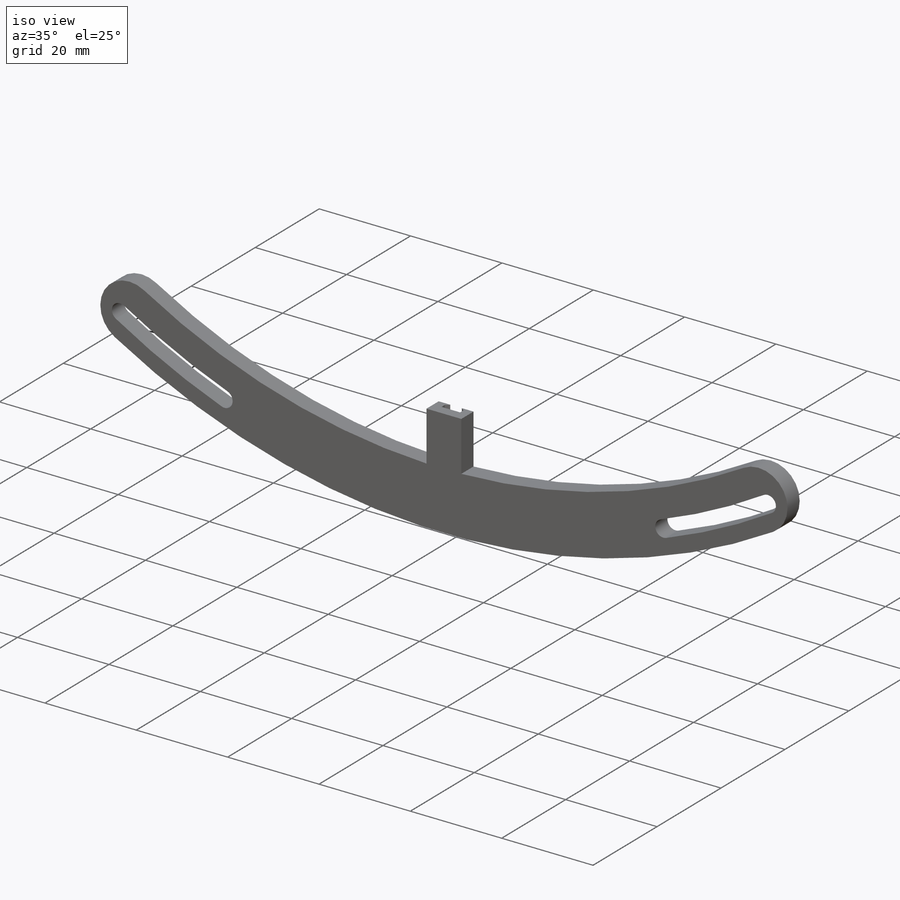
[diagram: iso view]
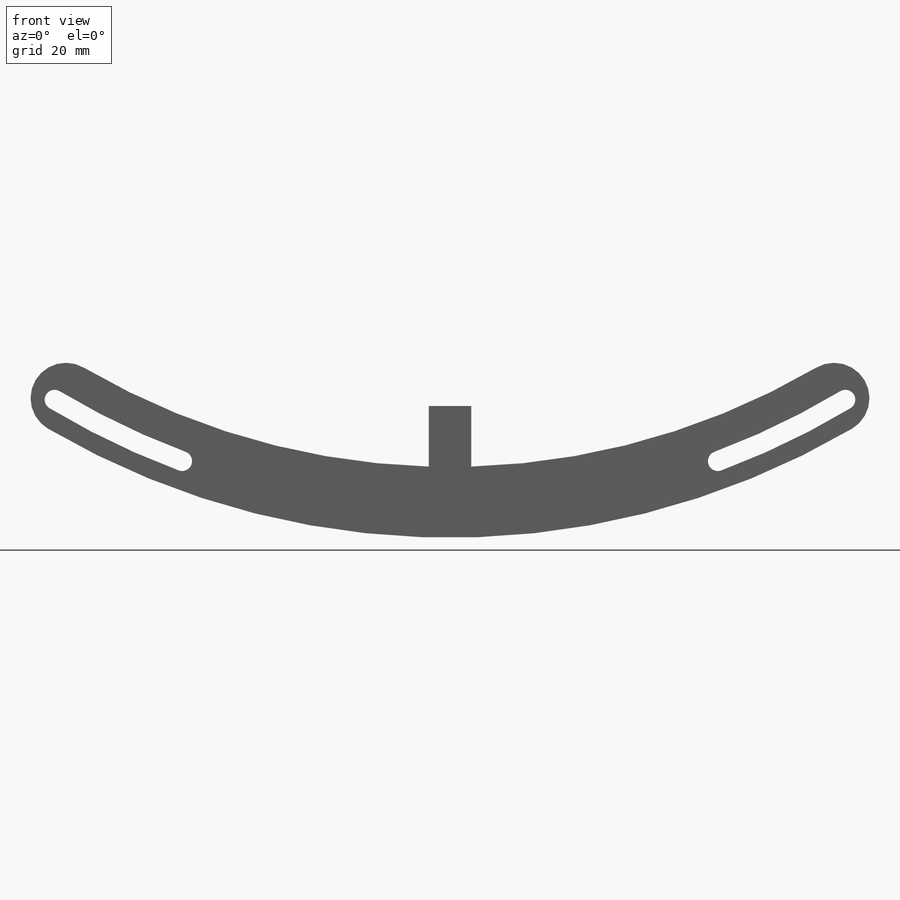
[diagram: front view]
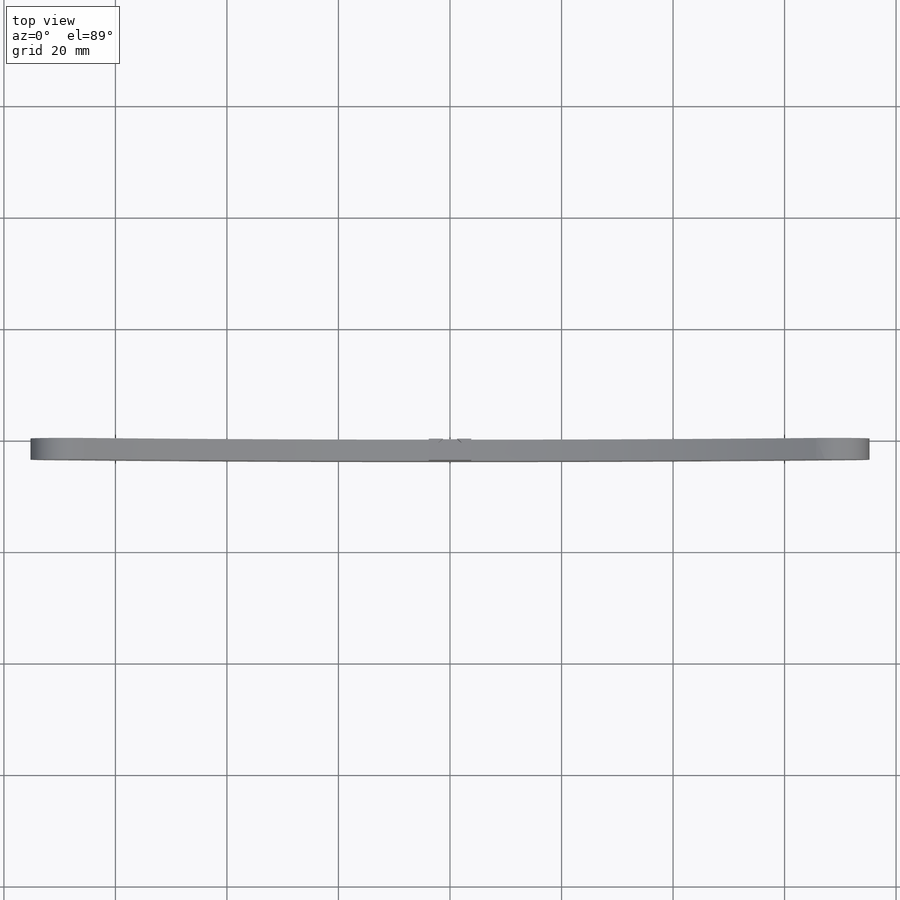
[diagram: top view]
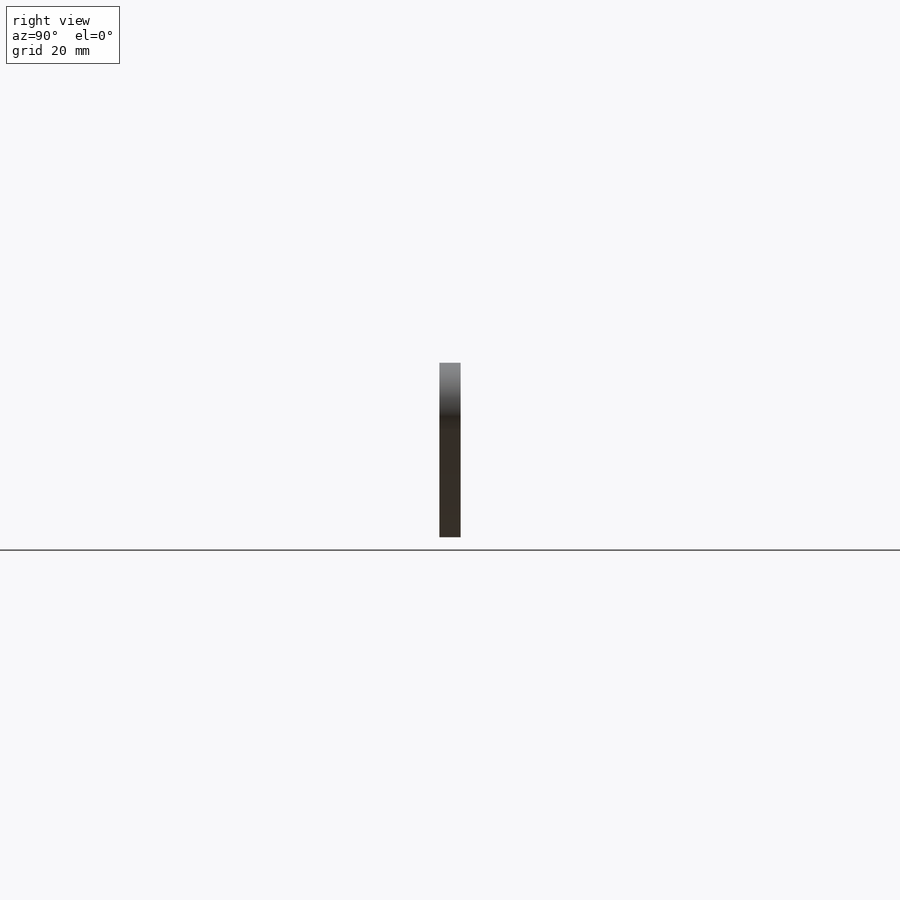
[diagram: right view]
SOLIDWORKS PART (.sldprt)
format: sldprt  version: not decoded by parser v0  size: 239,104 bytes
history: native  units: mm
features: sketch x5, cut_extrude x3, material x1, revolve x1, plane x1, extrude x1 (+11 scaffold rows collapsed)
feature tree (23):
  scaffold x11  (default folders/planes/origin — collapsed)
  material  "Material <not specified>"
  sketch  "Sketch1"  dims[c1.D1=7.62mm c1.D2=3.81mm c1.D3=12.7mm c1.D4=2.54mm c1.D5=132.588mm c1.D6=0.0mm c2.D1=142.748mm]
  revolve  "Revolve1"  Angle=360deg
  sketch  "Sketch2"  dims[D1=3.556mm D2=137.668mm D3=7.0]
  cut_extrude  "Cut-Extrude1"  Depth=30.48mm
  sketch  "Sketch3"  dims[c1.D2=1.778mm c1.D4=1.778mm c1.D7=130.048mm c1.D8=142.748mm c1.D10=6.35mm c1.D11=6.35mm c1.D1=25.4mm c2.D2=~64.300766mm c2.D3=25.4mm c2.D5=142.748mm c3.D5=33.0deg c3.D6=142.748mm c4.D6=33.0deg c4.D9=~165.430998mm]
  cut_extrude  "Cut-Extrude2"  [1 undecoded]
  plane  "Plane1"
  sketch  "Sketch6"  dims[D1=3.81mm D2=7.62mm]
  extrude  "Boss-Extrude1"  Depth=10.922mm
  sketch  "Sketch7"  dims[c1.D1=1.016mm c1.D2=0.762mm c1.D3=3.048mm c2.D1=1.651mm c2.D3=1.016mm c2.D4=2.032mm c2.D5=7.62mm c3.D5=90.0deg c4.D5=4.064mm]
  cut_extrude  "Cut-Extrude3"  Depth=6.096mm
decode coverage: 9 of 10 modeling features carry decoded parameters
note: ~ marks probable driven/reference dimensions
note: 1 parameter value undecoded
note: suppression state not decoded; provenance and decode notes live in map.json
